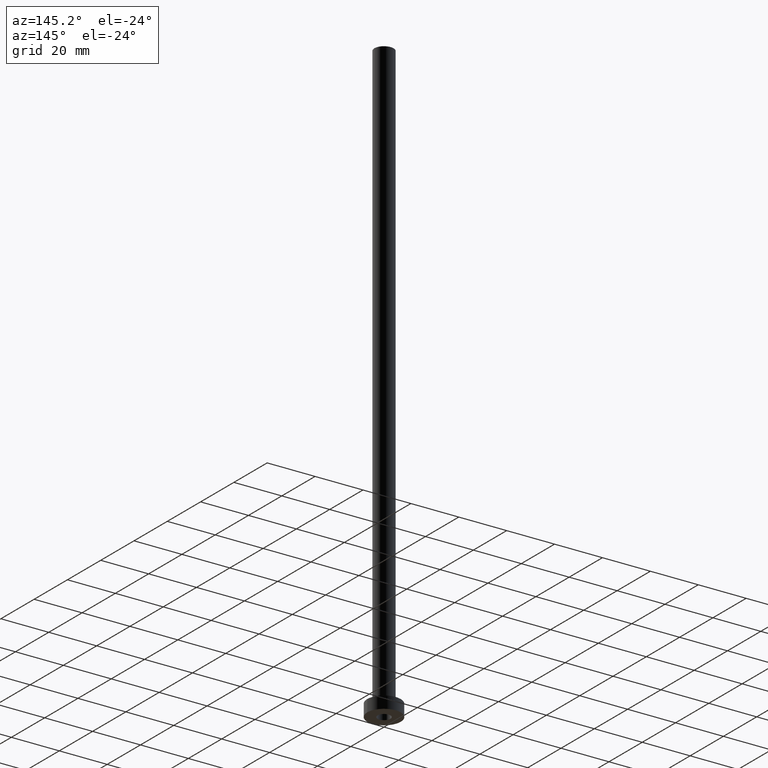
[diagram: clean part render]
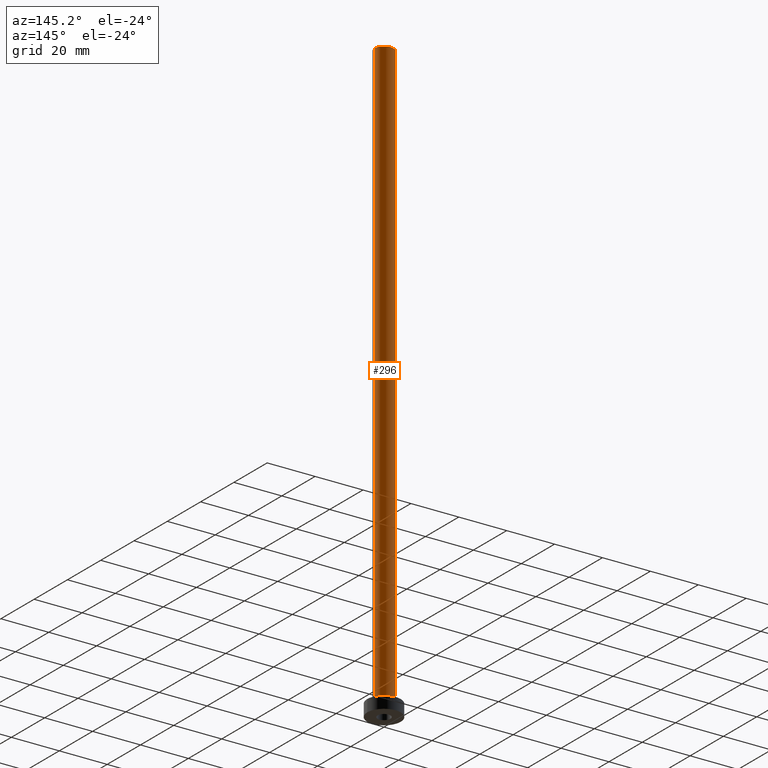
[diagram: same view with one face highlighted and labeled with its STEP entity id]
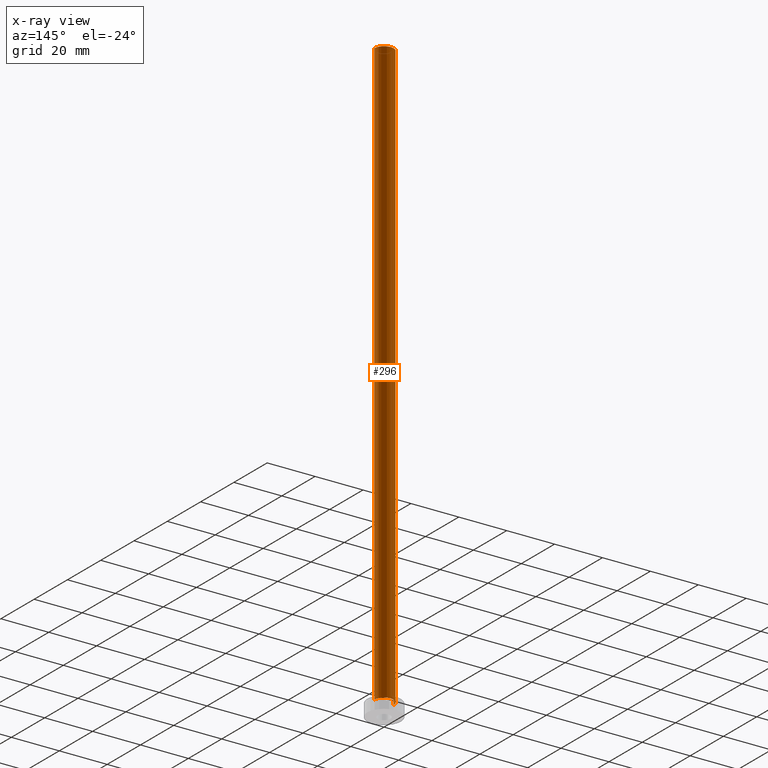
[diagram: x-ray of the same camera — body ghosted, the highlighted face saturated]
A machine part, auxiliary view. The second image highlights one B-rep face of the part: STEP entity #296.
The next image is the same camera in x-ray: the body ghosted, the highlighted face saturated — about 0% of this face is hidden behind the body in this view.
In plain terms, the highlighted cylindrical surface (edge-blend (fillet) strip) has radius 4 mm, axis along (-0, -0, -1).
Its self-contained STEP definition (entity closure, byte-faithful):
#20 = LINE ( 'NONE', #212, #416 ) ;
#26 = VERTEX_POINT ( 'NONE', #273 ) ;
#34 = VERTEX_POINT ( 'NONE', #340 ) ;
#38 = CARTESIAN_POINT ( 'NONE',  ( -4.000000000000000000, 0.000000000000000000, 250.0000000000000000 ) ) ;
#86 = CYLINDRICAL_SURFACE ( 'NONE', #402, 4.000000000000000000 ) ;
#96 = CARTESIAN_POINT ( 'NONE',  ( 4.000000000000000000, 4.898587196589412829E-16, 250.0000000000000000 ) ) ;
#105 = VERTEX_POINT ( 'NONE', #96 ) ;
#115 = EDGE_CURVE ( 'NONE', #260, #34, #20, .T. ) ;
#123 = CARTESIAN_POINT ( 'NONE',  ( 0.000000000000000000, 0.000000000000000000, 250.0000000000000000 ) ) ;
#130 = DIRECTION ( 'NONE',  ( -0.000000000000000000, -0.000000000000000000, -1.000000000000000000 ) ) ;
#132 = AXIS2_PLACEMENT_3D ( 'NONE', #196, #238, #335 ) ;
#137 = ORIENTED_EDGE ( 'NONE', *, *, #310, .T. ) ;
#152 = DIRECTION ( 'NONE',  ( 0.000000000000000000, 0.000000000000000000, 1.000000000000000000 ) ) ;
#190 = DIRECTION ( 'NONE',  ( -0.000000000000000000, -0.000000000000000000, -1.000000000000000000 ) ) ;
#195 = ORIENTED_EDGE ( 'NONE', *, *, #267, .F. ) ;
#196 = CARTESIAN_POINT ( 'NONE',  ( 0.000000000000000000, 0.000000000000000000, 5.500000000000005329 ) ) ;
#202 = EDGE_CURVE ( 'NONE', #105, #26, #312, .T. ) ;
#212 = CARTESIAN_POINT ( 'NONE',  ( -4.000000000000000000, 0.000000000000000000, 250.0000000000000000 ) ) ;
#236 = CARTESIAN_POINT ( 'NONE',  ( 0.000000000000000000, 0.000000000000000000, 250.0000000000000000 ) ) ;
#238 = DIRECTION ( 'NONE',  ( 0.000000000000000000, 0.000000000000000000, 1.000000000000000000 ) ) ;
#260 = VERTEX_POINT ( 'NONE', #38 ) ;
#267 = EDGE_CURVE ( 'NONE', #105, #260, #381, .T. ) ;
#273 = CARTESIAN_POINT ( 'NONE',  ( 4.000000000000000000, 4.898587196589412829E-16, 5.500000000000005329 ) ) ;
#274 = FACE_OUTER_BOUND ( 'NONE', #354, .T. ) ;
#295 = AXIS2_PLACEMENT_3D ( 'NONE', #236, #152, #404 ) ;
#296 = ADVANCED_FACE ( 'NONE', ( #274 ), #86, .T. ) ;
#310 = EDGE_CURVE ( 'NONE', #26, #34, #339, .T. ) ;
#312 = LINE ( 'NONE', #449, #373 ) ;
#316 = ORIENTED_EDGE ( 'NONE', *, *, #202, .T. ) ;
#323 = DIRECTION ( 'NONE',  ( -0.000000000000000000, -0.000000000000000000, -1.000000000000000000 ) ) ;
#335 = DIRECTION ( 'NONE',  ( 1.000000000000000000, 0.000000000000000000, 0.000000000000000000 ) ) ;
#337 = DIRECTION ( 'NONE',  ( -1.000000000000000000, 0.000000000000000000, 0.000000000000000000 ) ) ;
#339 = CIRCLE ( 'NONE', #132, 4.000000000000000000 ) ;
#340 = CARTESIAN_POINT ( 'NONE',  ( -4.000000000000000000, 0.000000000000000000, 5.500000000000005329 ) ) ;
#354 = EDGE_LOOP ( 'NONE', ( #195, #316, #137, #450 ) ) ;
#373 = VECTOR ( 'NONE', #130, 1000.000000000000000 ) ;
#381 = CIRCLE ( 'NONE', #295, 4.000000000000000000 ) ;
#402 = AXIS2_PLACEMENT_3D ( 'NONE', #123, #190, #337 ) ;
#404 = DIRECTION ( 'NONE',  ( 1.000000000000000000, 0.000000000000000000, 0.000000000000000000 ) ) ;
#416 = VECTOR ( 'NONE', #323, 1000.000000000000000 ) ;
#449 = CARTESIAN_POINT ( 'NONE',  ( 4.000000000000000000, 4.898587196589412829E-16, 250.0000000000000000 ) ) ;
#450 = ORIENTED_EDGE ( 'NONE', *, *, #115, .F. ) ;